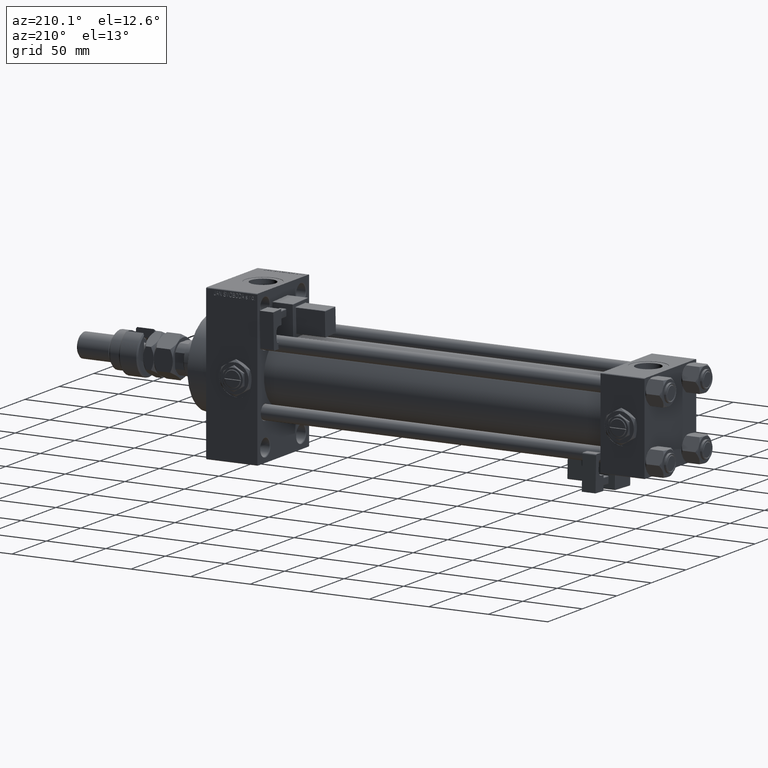
[diagram: clean part render]
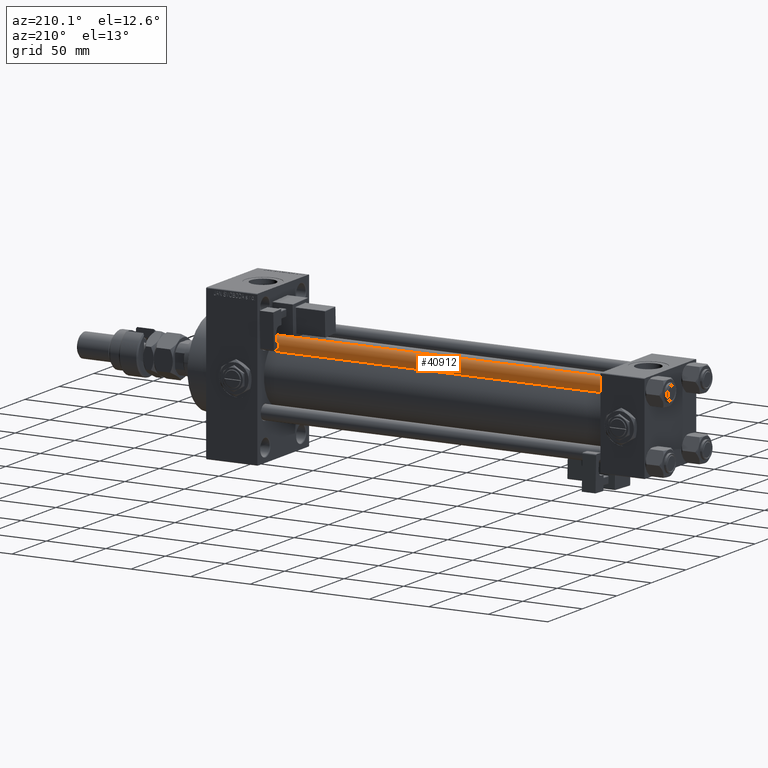
[diagram: same view with one face highlighted and labeled with its STEP entity id]
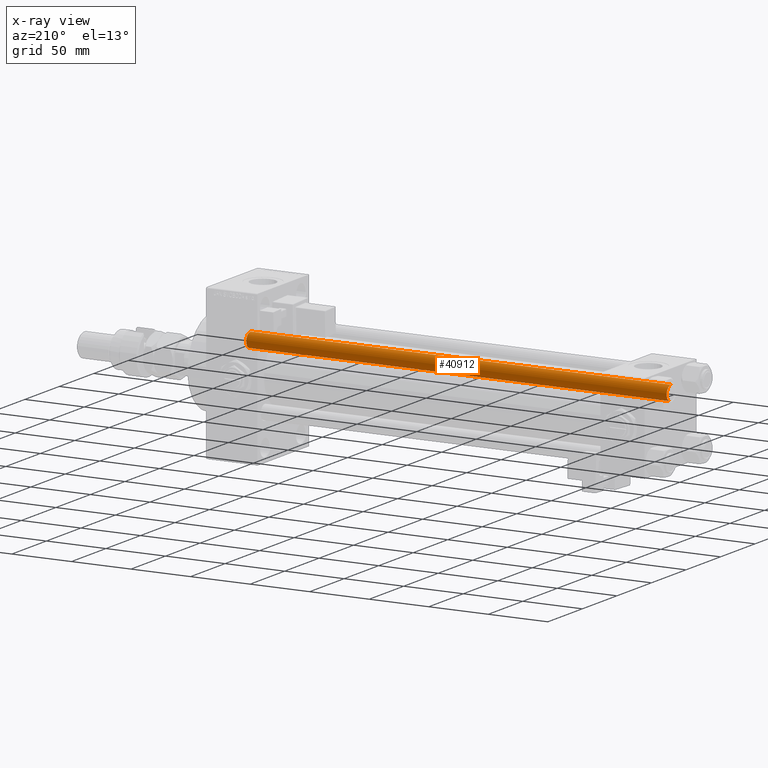
[diagram: x-ray of the same camera — body ghosted, the highlighted face saturated]
A machine part, auxiliary view. The second image highlights one B-rep face of the part: STEP entity #40912.
The next image is the same camera in x-ray: the body ghosted, the highlighted face saturated — about 0% of this face is hidden behind the body in this view.
In plain terms, the highlighted cylindrical surface (edge-blend (fillet) strip) has radius 6 mm, axis along (-1, -0, 0).
Its self-contained STEP definition (entity closure, byte-faithful):
#889 = DIRECTION ( 'NONE',  ( 1.000000000000000000, 0.000000000000000000, 0.000000000000000000 ) ) ;
#1385 = DIRECTION ( 'NONE',  ( -1.000000000000000000, 0.000000000000000000, 0.000000000000000000 ) ) ;
#4252 = CARTESIAN_POINT ( 'NONE',  ( 6.000000000000000888, 7.347880794884120722E-16, 354.0000000000000000 ) ) ;
#4339 = ORIENTED_EDGE ( 'NONE', *, *, #41360, .F. ) ;
#4717 = VECTOR ( 'NONE', #21025, 1000.000000000000000 ) ;
#5986 = VERTEX_POINT ( 'NONE', #47310 ) ;
#7215 = AXIS2_PLACEMENT_3D ( 'NONE', #35515, #9412, #47887 ) ;
#9412 = DIRECTION ( 'NONE',  ( 0.000000000000000000, 0.000000000000000000, -1.000000000000000000 ) ) ;
#13681 = CARTESIAN_POINT ( 'NONE',  ( -6.000000000000000888, 0.000000000000000000, 0.5000000000000559552 ) ) ;
#15464 = ORIENTED_EDGE ( 'NONE', *, *, #43989, .T. ) ;
#17383 = CARTESIAN_POINT ( 'NONE',  ( 0.000000000000000000, 0.000000000000000000, 0.5000000000000559552 ) ) ;
#19928 = LINE ( 'NONE', #37476, #43203 ) ;
#21025 = DIRECTION ( 'NONE',  ( -0.000000000000000000, -0.000000000000000000, -1.000000000000000000 ) ) ;
#21238 = CIRCLE ( 'NONE', #7215, 6.000000000000000888 ) ;
#22437 = VERTEX_POINT ( 'NONE', #47418 ) ;
#28998 = LINE ( 'NONE', #4252, #4717 ) ;
#30578 = DIRECTION ( 'NONE',  ( -0.000000000000000000, -0.000000000000000000, 1.000000000000000000 ) ) ;
#31073 = CYLINDRICAL_SURFACE ( 'NONE', #36144, 6.000000000000000888 ) ;
#32641 = ORIENTED_EDGE ( 'NONE', *, *, #51983, .T. ) ;
#33630 = DIRECTION ( 'NONE',  ( -0.000000000000000000, -0.000000000000000000, -1.000000000000000000 ) ) ;
#34375 = VERTEX_POINT ( 'NONE', #41835 ) ;
#35515 = CARTESIAN_POINT ( 'NONE',  ( 0.000000000000000000, 0.000000000000000000, 353.5000000000000000 ) ) ;
#35629 = CIRCLE ( 'NONE', #40024, 6.000000000000000888 ) ;
#35750 = FACE_OUTER_BOUND ( 'NONE', #42489, .T. ) ;
#36144 = AXIS2_PLACEMENT_3D ( 'NONE', #52499, #39592, #1385 ) ;
#37476 = CARTESIAN_POINT ( 'NONE',  ( -6.000000000000000888, 0.000000000000000000, 354.0000000000000000 ) ) ;
#39592 = DIRECTION ( 'NONE',  ( -0.000000000000000000, -0.000000000000000000, -1.000000000000000000 ) ) ;
#40024 = AXIS2_PLACEMENT_3D ( 'NONE', #17383, #30578, #889 ) ;
#40912 = ADVANCED_FACE ( 'NONE', ( #35750 ), #31073, .T. ) ;
#41360 = EDGE_CURVE ( 'NONE', #34375, #54351, #19928, .T. ) ;
#41835 = CARTESIAN_POINT ( 'NONE',  ( -6.000000000000000888, 0.000000000000000000, 353.5000000000000000 ) ) ;
#42489 = EDGE_LOOP ( 'NONE', ( #15464, #54366, #32641, #4339 ) ) ;
#43203 = VECTOR ( 'NONE', #33630, 1000.000000000000000 ) ;
#43989 = EDGE_CURVE ( 'NONE', #34375, #5986, #21238, .T. ) ;
#47310 = CARTESIAN_POINT ( 'NONE',  ( 6.000000000000000888, 7.347880794884120722E-16, 353.5000000000000000 ) ) ;
#47418 = CARTESIAN_POINT ( 'NONE',  ( 6.000000000000000888, 7.347880794884120722E-16, 0.5000000000000559552 ) ) ;
#47887 = DIRECTION ( 'NONE',  ( 1.000000000000000000, 0.000000000000000000, 0.000000000000000000 ) ) ;
#48598 = EDGE_CURVE ( 'NONE', #5986, #22437, #28998, .T. ) ;
#51983 = EDGE_CURVE ( 'NONE', #22437, #54351, #35629, .T. ) ;
#52499 = CARTESIAN_POINT ( 'NONE',  ( 0.000000000000000000, 0.000000000000000000, 354.0000000000000000 ) ) ;
#54351 = VERTEX_POINT ( 'NONE', #13681 ) ;
#54366 = ORIENTED_EDGE ( 'NONE', *, *, #48598, .T. ) ;